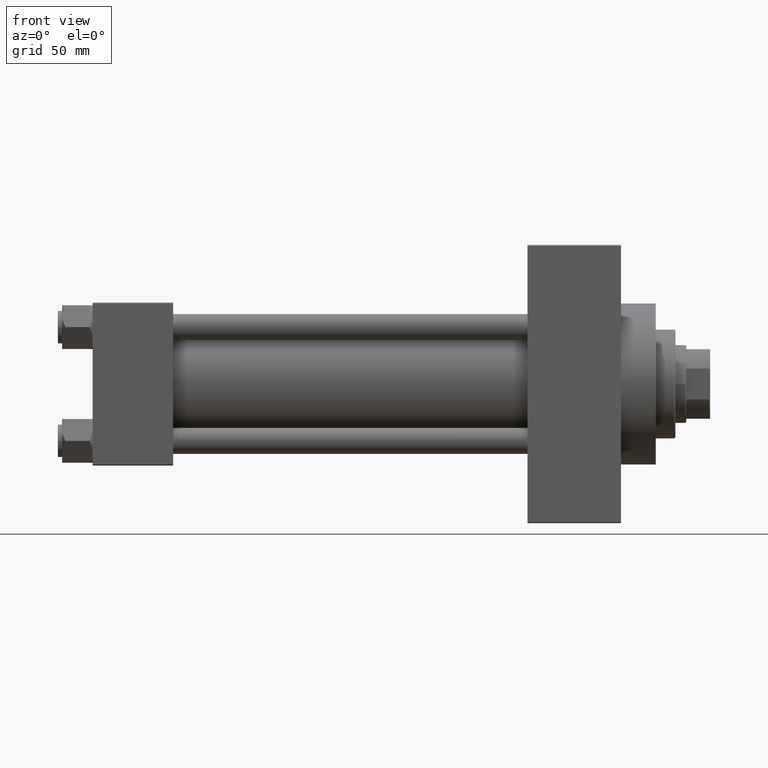
[diagram: clean part render]
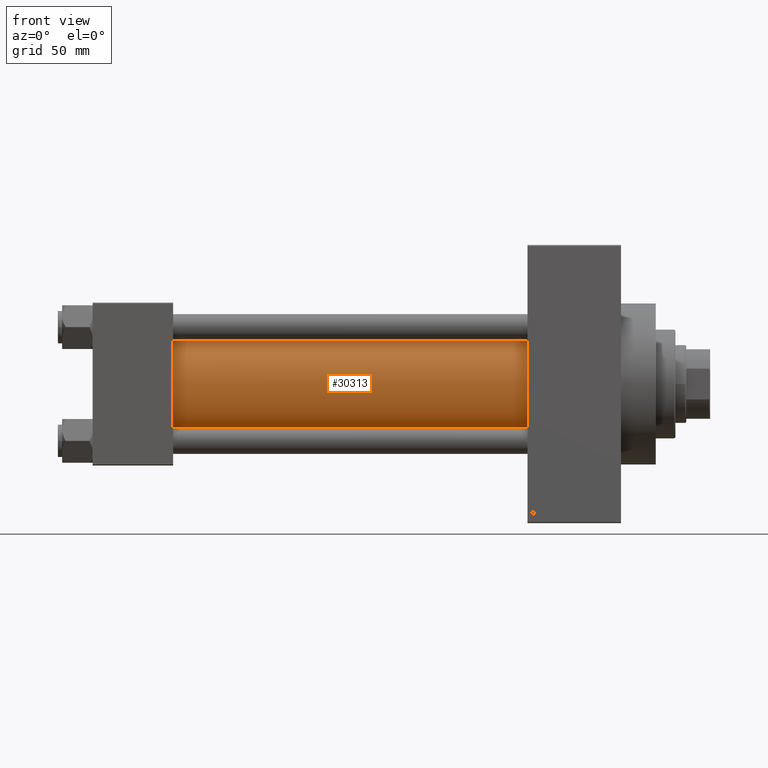
[diagram: same view with one face highlighted and labeled with its STEP entity id]
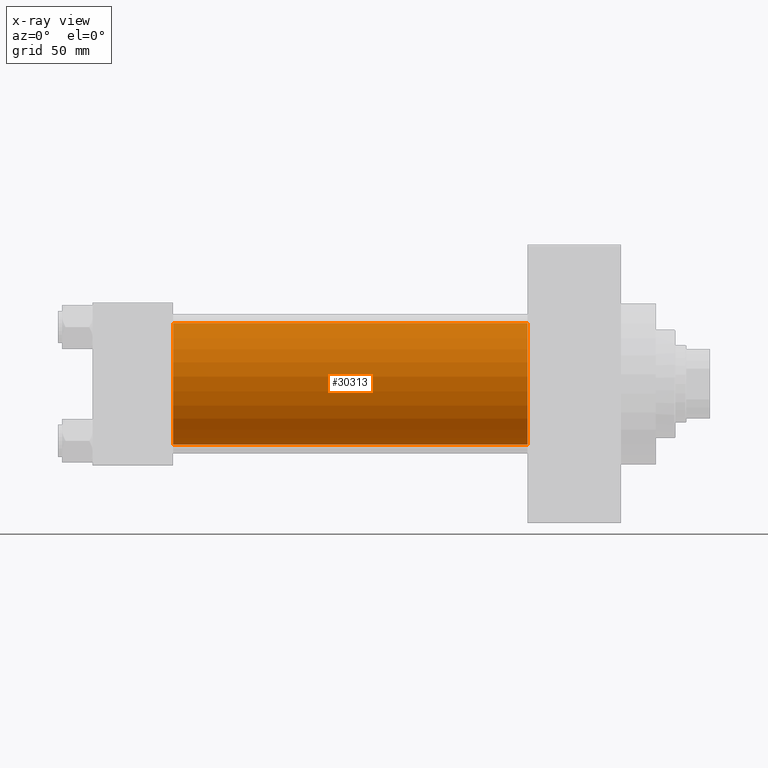
[diagram: x-ray of the same camera — body ghosted, the highlighted face saturated]
A machine part, front view. The second image highlights one B-rep face of the part: STEP entity #30313.
The next image is the same camera in x-ray: the body ghosted, the highlighted face saturated — about 0% of this face is hidden behind the body in this view.
In plain terms, the highlighted cylindrical surface (partial cylindrical patch) has radius 28 mm, axis along (-1, -0, -0).
Its self-contained STEP definition (entity closure, byte-faithful):
#109 = AXIS2_PLACEMENT_3D ( 'NONE', #4104, #19896, #20154 ) ;
#985 = ORIENTED_EDGE ( 'NONE', *, *, #46834, .F. ) ;
#1902 = CARTESIAN_POINT ( 'NONE',  ( 200.0000000000000000, 8.269258236473784371E-16, -28.00000000000000000 ) ) ;
#2155 = DIRECTION ( 'NONE',  ( -1.000000000000000000, -0.000000000000000000, -0.000000000000000000 ) ) ;
#2208 = CARTESIAN_POINT ( 'NONE',  ( 200.0000000000000000, -2.602085213965210642E-15, 28.00000000000000000 ) ) ;
#2885 = CARTESIAN_POINT ( 'NONE',  ( 200.0000000000000000, -2.602085213965210642E-15, 0.000000000000000000 ) ) ;
#4104 = CARTESIAN_POINT ( 'NONE',  ( 200.0000000000000000, -2.602085213965210642E-15, 0.000000000000000000 ) ) ;
#4255 = ORIENTED_EDGE ( 'NONE', *, *, #33493, .T. ) ;
#5455 = VERTEX_POINT ( 'NONE', #32937 ) ;
#6152 = CARTESIAN_POINT ( 'NONE',  ( 37.00000000000000711, -2.602085213965210642E-15, 28.00000000000000000 ) ) ;
#7127 = CYLINDRICAL_SURFACE ( 'NONE', #24879, 28.00000000000000000 ) ;
#8976 = DIRECTION ( 'NONE',  ( -1.000000000000000000, -0.000000000000000000, -0.000000000000000000 ) ) ;
#9451 = CARTESIAN_POINT ( 'NONE',  ( 37.00000000000000711, 8.269258236473784371E-16, -28.00000000000000000 ) ) ;
#9479 = LINE ( 'NONE', #2208, #12705 ) ;
#11219 = EDGE_LOOP ( 'NONE', ( #985, #45878, #48237, #4255 ) ) ;
#12705 = VECTOR ( 'NONE', #8976, 1000.000000000000000 ) ;
#12846 = CIRCLE ( 'NONE', #34441, 28.00000000000000000 ) ;
#15432 = EDGE_CURVE ( 'NONE', #32089, #5455, #44971, .T. ) ;
#16332 = VERTEX_POINT ( 'NONE', #6152 ) ;
#17639 = VERTEX_POINT ( 'NONE', #9451 ) ;
#19896 = DIRECTION ( 'NONE',  ( 1.000000000000000000, 0.000000000000000000, 0.000000000000000000 ) ) ;
#20154 = DIRECTION ( 'NONE',  ( 0.000000000000000000, 0.000000000000000000, -1.000000000000000000 ) ) ;
#24879 = AXIS2_PLACEMENT_3D ( 'NONE', #2885, #44997, #37474 ) ;
#25211 = LINE ( 'NONE', #1902, #40362 ) ;
#26174 = EDGE_CURVE ( 'NONE', #32089, #16332, #9479, .T. ) ;
#29703 = FACE_OUTER_BOUND ( 'NONE', #11219, .T. ) ;
#30313 = ADVANCED_FACE ( 'NONE', ( #29703 ), #7127, .T. ) ;
#31549 = DIRECTION ( 'NONE',  ( 0.000000000000000000, 0.000000000000000000, 1.000000000000000000 ) ) ;
#32089 = VERTEX_POINT ( 'NONE', #35382 ) ;
#32937 = CARTESIAN_POINT ( 'NONE',  ( 200.0000000000000000, 8.269258236473784371E-16, -28.00000000000000000 ) ) ;
#33493 = EDGE_CURVE ( 'NONE', #16332, #17639, #12846, .T. ) ;
#34441 = AXIS2_PLACEMENT_3D ( 'NONE', #46852, #35822, #31549 ) ;
#35382 = CARTESIAN_POINT ( 'NONE',  ( 200.0000000000000000, -2.602085213965210642E-15, 28.00000000000000000 ) ) ;
#35822 = DIRECTION ( 'NONE',  ( 1.000000000000000000, -0.000000000000000000, 0.000000000000000000 ) ) ;
#37474 = DIRECTION ( 'NONE',  ( 0.000000000000000000, 0.000000000000000000, 1.000000000000000000 ) ) ;
#40362 = VECTOR ( 'NONE', #2155, 1000.000000000000000 ) ;
#44971 = CIRCLE ( 'NONE', #109, 28.00000000000000000 ) ;
#44997 = DIRECTION ( 'NONE',  ( -1.000000000000000000, -0.000000000000000000, -0.000000000000000000 ) ) ;
#45878 = ORIENTED_EDGE ( 'NONE', *, *, #15432, .F. ) ;
#46834 = EDGE_CURVE ( 'NONE', #5455, #17639, #25211, .T. ) ;
#46852 = CARTESIAN_POINT ( 'NONE',  ( 37.00000000000000711, -2.602085213965210642E-15, 0.000000000000000000 ) ) ;
#48237 = ORIENTED_EDGE ( 'NONE', *, *, #26174, .T. ) ;